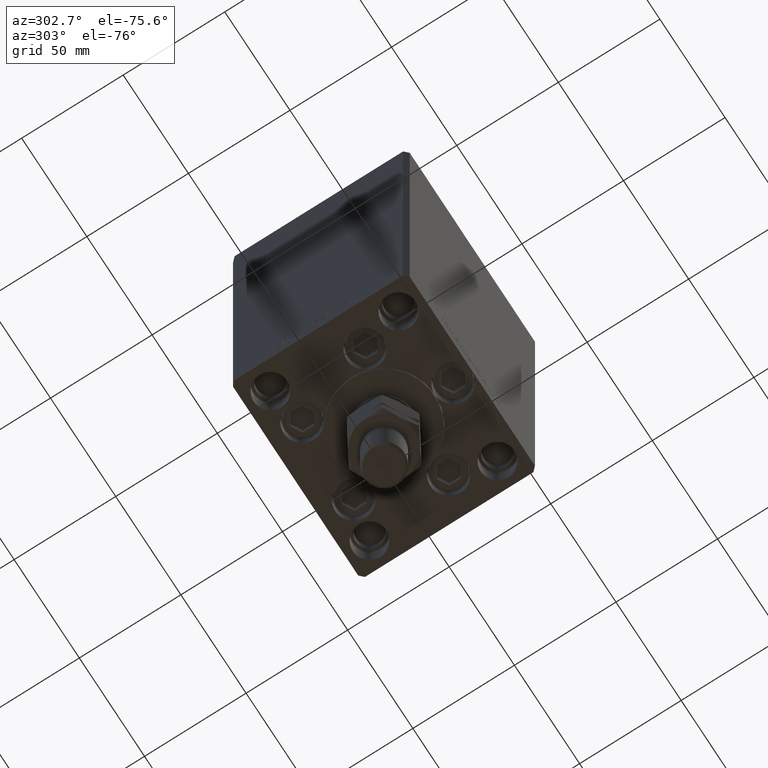
[diagram: clean part render]
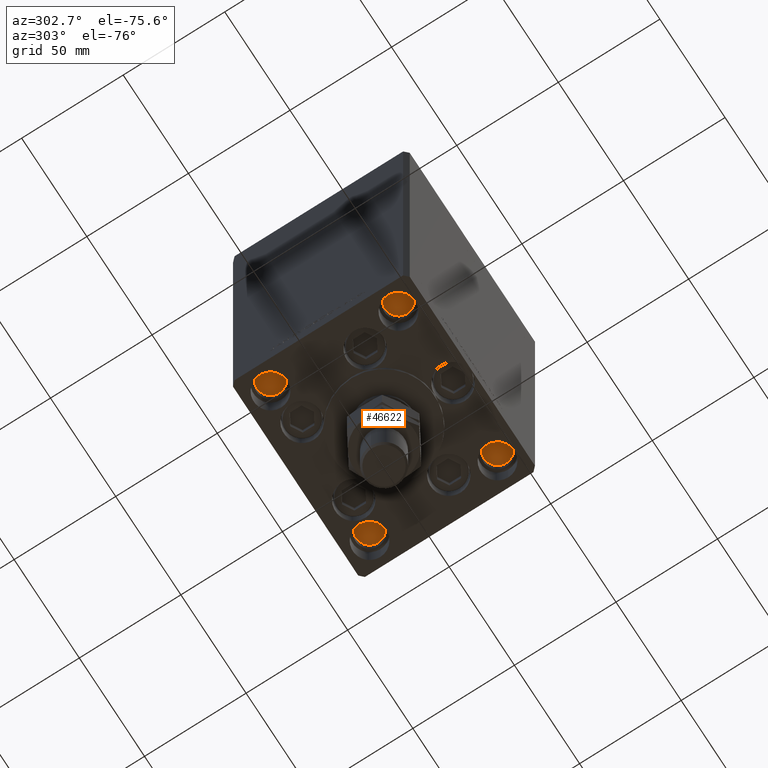
[diagram: same view with one face highlighted and labeled with its STEP entity id]
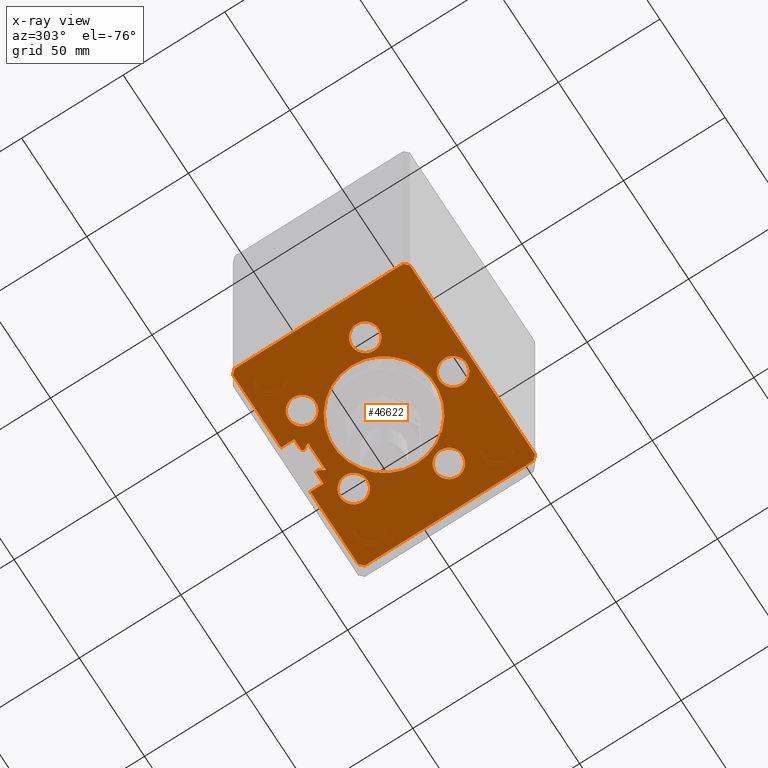
[diagram: x-ray of the same camera — body ghosted, the highlighted face saturated]
A machine part, auxiliary view. The second image highlights one B-rep face of the part: STEP entity #46622.
The next image is the same camera in x-ray: the body ghosted, the highlighted face saturated — about 2% of this face is hidden behind the body in this view.
In plain terms, the highlighted planar face has unit normal (0, 0, -1).
Its self-contained STEP definition (entity closure, byte-faithful):
#13 = AXIS2_PLACEMENT_3D ( 'NONE', #24228, #845, #8787 ) ;
#35 = ORIENTED_EDGE ( 'NONE', *, *, #9157, .F. ) ;
#242 = VERTEX_POINT ( 'NONE', #9892 ) ;
#845 = DIRECTION ( 'NONE',  ( 0.000000000000000000, 0.000000000000000000, -1.000000000000000000 ) ) ;
#970 = DIRECTION ( 'NONE',  ( -1.000000000000000000, 0.000000000000000000, 0.000000000000000000 ) ) ;
#1000 = ORIENTED_EDGE ( 'NONE', *, *, #7543, .F. ) ;
#1207 = VECTOR ( 'NONE', #20217, 1000.000000000000000 ) ;
#1394 = LINE ( 'NONE', #20665, #5279 ) ;
#1454 = LINE ( 'NONE', #45339, #24748 ) ;
#1631 = ORIENTED_EDGE ( 'NONE', *, *, #9635, .F. ) ;
#1771 = CARTESIAN_POINT ( 'NONE',  ( -25.30550741379015278, -11.33333333333334103, 0.000000000000000000 ) ) ;
#1869 = EDGE_CURVE ( 'NONE', #33202, #34085, #21086, .T. ) ;
#1889 = EDGE_CURVE ( 'NONE', #34085, #16377, #2500, .T. ) ;
#2276 = CARTESIAN_POINT ( 'NONE',  ( 48.00000000000000711, 43.50000000000000000, 0.000000000000000000 ) ) ;
#2279 = LINE ( 'NONE', #45923, #9769 ) ;
#2408 = CIRCLE ( 'NONE', #31955, 6.749999999999999112 ) ;
#2462 = ORIENTED_EDGE ( 'NONE', *, *, #20446, .T. ) ;
#2500 = LINE ( 'NONE', #15095, #30213 ) ;
#2763 = DIRECTION ( 'NONE',  ( 1.000000000000000000, 0.000000000000000000, 0.000000000000000000 ) ) ;
#3336 = EDGE_CURVE ( 'NONE', #23847, #28022, #45731, .T. ) ;
#3490 = AXIS2_PLACEMENT_3D ( 'NONE', #24583, #6067, #28423 ) ;
#3771 = FACE_BOUND ( 'NONE', #24897, .T. ) ;
#3869 = DIRECTION ( 'NONE',  ( 1.000000000000000000, 0.000000000000000000, 0.000000000000000000 ) ) ;
#3994 = DIRECTION ( 'NONE',  ( -0.000000000000000000, -0.000000000000000000, -1.000000000000000000 ) ) ;
#4018 = FACE_BOUND ( 'NONE', #10931, .T. ) ;
#4036 = CARTESIAN_POINT ( 'NONE',  ( -49.99999999999998579, -41.49999999999999289, 0.000000000000000000 ) ) ;
#4648 = AXIS2_PLACEMENT_3D ( 'NONE', #30888, #42942, #22689 ) ;
#4651 = CARTESIAN_POINT ( 'NONE',  ( -11.24999999999999822, 43.50000000000000000, 0.000000000000000000 ) ) ;
#4877 = LINE ( 'NONE', #31580, #27668 ) ;
#5209 = EDGE_CURVE ( 'NONE', #16377, #26003, #16619, .T. ) ;
#5279 = VECTOR ( 'NONE', #43250, 1000.000000000000000 ) ;
#5810 = CARTESIAN_POINT ( 'NONE',  ( -26.57068048781373548, 27.62499999999999645, 0.000000000000000000 ) ) ;
#6067 = DIRECTION ( 'NONE',  ( 0.000000000000000000, 0.000000000000000000, -1.000000000000000000 ) ) ;
#6408 = CARTESIAN_POINT ( 'NONE',  ( -11.24999999999999822, 43.50000000000000000, 0.000000000000000000 ) ) ;
#6651 = EDGE_CURVE ( 'NONE', #29056, #23782, #2279, .T. ) ;
#6916 = EDGE_LOOP ( 'NONE', ( #24553, #20221 ) ) ;
#7543 = EDGE_CURVE ( 'NONE', #242, #33903, #2408, .T. ) ;
#7695 = DIRECTION ( 'NONE',  ( -1.000000000000000000, 0.000000000000000000, 0.000000000000000000 ) ) ;
#7836 = DIRECTION ( 'NONE',  ( 1.000000000000000000, 0.000000000000000000, 0.000000000000000000 ) ) ;
#8062 = DIRECTION ( 'NONE',  ( -1.000000000000000000, 0.000000000000000000, 0.000000000000000000 ) ) ;
#8081 = CARTESIAN_POINT ( 'NONE',  ( -32.05550741379015278, -11.33333333333334103, 0.000000000000000000 ) ) ;
#8346 = CARTESIAN_POINT ( 'NONE',  ( 11.24999999999999822, 43.50000000000000000, 0.000000000000000000 ) ) ;
#8422 = VERTEX_POINT ( 'NONE', #33880 ) ;
#8563 = CARTESIAN_POINT ( 'NONE',  ( 50.00000000000001421, 41.49999999999999289, 0.000000000000000000 ) ) ;
#8787 = DIRECTION ( 'NONE',  ( -1.000000000000000000, 0.000000000000000000, 0.000000000000000000 ) ) ;
#9148 = VERTEX_POINT ( 'NONE', #27175 ) ;
#9154 = CARTESIAN_POINT ( 'NONE',  ( 6.876153656360465050, 32.99999999999986500, 0.000000000000000000 ) ) ;
#9157 = EDGE_CURVE ( 'NONE', #43502, #40711, #40206, .T. ) ;
#9403 = CIRCLE ( 'NONE', #17617, 6.749999999999999112 ) ;
#9538 = EDGE_CURVE ( 'NONE', #13394, #15029, #36130, .T. ) ;
#9635 = EDGE_CURVE ( 'NONE', #42655, #22672, #34490, .T. ) ;
#9730 = DIRECTION ( 'NONE',  ( -1.000000000000000000, 0.000000000000000000, 0.000000000000000000 ) ) ;
#9769 = VECTOR ( 'NONE', #45659, 1000.000000000000114 ) ;
#9892 = CARTESIAN_POINT ( 'NONE',  ( 25.30550741379015278, -11.33333333333333215, 0.000000000000000000 ) ) ;
#10076 = CARTESIAN_POINT ( 'NONE',  ( -6.183333333333997928, 36.99999999999999289, 0.000000000000000000 ) ) ;
#10931 = EDGE_LOOP ( 'NONE', ( #28210, #20264 ) ) ;
#10972 = CARTESIAN_POINT ( 'NONE',  ( 6.183333333333997928, 36.06666666666598786, 0.000000000000000000 ) ) ;
#10977 = PLANE ( 'NONE',  #26780 ) ;
#11134 = DIRECTION ( 'NONE',  ( 1.000000000000000000, 0.000000000000000000, 0.000000000000000000 ) ) ;
#11204 = CIRCLE ( 'NONE', #4648, 6.749999999999999112 ) ;
#11222 = DIRECTION ( 'NONE',  ( 0.000000000000000000, 0.000000000000000000, -1.000000000000000000 ) ) ;
#11257 = EDGE_CURVE ( 'NONE', #42176, #14490, #49773, .T. ) ;
#11395 = ORIENTED_EDGE ( 'NONE', *, *, #16180, .T. ) ;
#11442 = CARTESIAN_POINT ( 'NONE',  ( 6.750000000000003553, -34.00000000000000000, 0.000000000000000000 ) ) ;
#11578 = VERTEX_POINT ( 'NONE', #25100 ) ;
#11662 = DIRECTION ( 'NONE',  ( -0.000000000000000000, 0.000000000000000000, 1.000000000000000000 ) ) ;
#11673 = CIRCLE ( 'NONE', #3490, 6.749999999999999112 ) ;
#11970 = ORIENTED_EDGE ( 'NONE', *, *, #33373, .T. ) ;
#12581 = CARTESIAN_POINT ( 'NONE',  ( 47.99999999999998579, -43.50000000000000000, 0.000000000000000000 ) ) ;
#12584 = EDGE_CURVE ( 'NONE', #41155, #50041, #35350, .T. ) ;
#12673 = ORIENTED_EDGE ( 'NONE', *, *, #35264, .F. ) ;
#13170 = DIRECTION ( 'NONE',  ( 0.000000000000000000, 0.000000000000000000, -1.000000000000000000 ) ) ;
#13211 = VECTOR ( 'NONE', #37251, 1000.000000000000000 ) ;
#13214 = CIRCLE ( 'NONE', #35347, 0.9333333333340008142 ) ;
#13276 = DIRECTION ( 'NONE',  ( 0.000000000000000000, 0.000000000000000000, -1.000000000000000000 ) ) ;
#13394 = VERTEX_POINT ( 'NONE', #11442 ) ;
#13678 = VERTEX_POINT ( 'NONE', #34770 ) ;
#14130 = CARTESIAN_POINT ( 'NONE',  ( -48.00000000000000711, 43.50000000000000000, 0.000000000000000000 ) ) ;
#14348 = CARTESIAN_POINT ( 'NONE',  ( 32.05550741379015278, -11.33333333333333215, 0.000000000000000000 ) ) ;
#14490 = VERTEX_POINT ( 'NONE', #8563 ) ;
#14611 = CARTESIAN_POINT ( 'NONE',  ( -38.80550741379015278, -11.33333333333334103, 0.000000000000000000 ) ) ;
#14637 = CARTESIAN_POINT ( 'NONE',  ( -5.375042956467945388, 35.59999999999898534, 0.000000000000000000 ) ) ;
#14816 = VERTEX_POINT ( 'NONE', #4651 ) ;
#15029 = VERTEX_POINT ( 'NONE', #31553 ) ;
#15095 = CARTESIAN_POINT ( 'NONE',  ( 6.183333333333997928, 36.99999999999999289, 0.000000000000000000 ) ) ;
#15504 = EDGE_CURVE ( 'NONE', #9148, #43761, #17986, .T. ) ;
#15613 = CARTESIAN_POINT ( 'NONE',  ( 6.183333333333997928, 36.99999999999999289, 0.000000000000000000 ) ) ;
#15761 = EDGE_LOOP ( 'NONE', ( #35, #36266 ) ) ;
#15833 = DIRECTION ( 'NONE',  ( -1.000000000000000000, 0.000000000000000000, -0.000000000000000000 ) ) ;
#15964 = ORIENTED_EDGE ( 'NONE', *, *, #28019, .F. ) ;
#16180 = EDGE_CURVE ( 'NONE', #36125, #13678, #1454, .T. ) ;
#16377 = VERTEX_POINT ( 'NONE', #34803 ) ;
#16545 = EDGE_CURVE ( 'NONE', #50041, #41155, #43603, .T. ) ;
#16619 = LINE ( 'NONE', #24852, #37577 ) ;
#16873 = LINE ( 'NONE', #20985, #1207 ) ;
#16875 = DIRECTION ( 'NONE',  ( 0.000000000000000000, 1.000000000000000000, 0.000000000000000000 ) ) ;
#17032 = CARTESIAN_POINT ( 'NONE',  ( 4.163799117101000559E-15, -34.00000000000000000, 0.000000000000000000 ) ) ;
#17257 = AXIS2_PLACEMENT_3D ( 'NONE', #17032, #13170, #44761 ) ;
#17617 = AXIS2_PLACEMENT_3D ( 'NONE', #42173, #50127, #46281 ) ;
#17986 = LINE ( 'NONE', #14130, #13211 ) ;
#18810 = LINE ( 'NONE', #10076, #37910 ) ;
#18849 = CARTESIAN_POINT ( 'NONE',  ( -6.183333333333997928, 36.06666666666598786, 0.000000000000000000 ) ) ;
#19027 = LINE ( 'NONE', #38779, #22704 ) ;
#19345 = EDGE_CURVE ( 'NONE', #33903, #242, #11204, .T. ) ;
#19439 = FACE_BOUND ( 'NONE', #6916, .T. ) ;
#19487 = EDGE_CURVE ( 'NONE', #14816, #9148, #19027, .T. ) ;
#19540 = CARTESIAN_POINT ( 'NONE',  ( 0.000000000000000000, 0.000000000000000000, 0.000000000000000000 ) ) ;
#19654 = DIRECTION ( 'NONE',  ( 0.000000000000000000, 0.000000000000000000, -1.000000000000000000 ) ) ;
#19706 = DIRECTION ( 'NONE',  ( 0.7071067811865474617, -0.7071067811865474617, 0.000000000000000000 ) ) ;
#19871 = LINE ( 'NONE', #23469, #27997 ) ;
#20054 = DIRECTION ( 'NONE',  ( -0.000000000000000000, 0.000000000000000000, 1.000000000000000000 ) ) ;
#20217 = DIRECTION ( 'NONE',  ( 1.000000000000000000, -0.000000000000000000, -0.000000000000000000 ) ) ;
#20221 = ORIENTED_EDGE ( 'NONE', *, *, #23631, .T. ) ;
#20264 = ORIENTED_EDGE ( 'NONE', *, *, #12584, .F. ) ;
#20306 = AXIS2_PLACEMENT_3D ( 'NONE', #46839, #11662, #27345 ) ;
#20446 = EDGE_CURVE ( 'NONE', #14816, #25206, #4877, .T. ) ;
#20665 = CARTESIAN_POINT ( 'NONE',  ( -50.00000000000001421, 41.49999999999999289, 0.000000000000000000 ) ) ;
#20985 = CARTESIAN_POINT ( 'NONE',  ( 6.876153656360465050, 32.99999999999986500, 0.000000000000000000 ) ) ;
#21086 = CIRCLE ( 'NONE', #45772, 0.9333333333340008142 ) ;
#21210 = ORIENTED_EDGE ( 'NONE', *, *, #32422, .T. ) ;
#21581 = CARTESIAN_POINT ( 'NONE',  ( 38.80550741379015278, -11.33333333333333215, 0.000000000000000000 ) ) ;
#21943 = ORIENTED_EDGE ( 'NONE', *, *, #11257, .T. ) ;
#21944 = ORIENTED_EDGE ( 'NONE', *, *, #15504, .F. ) ;
#22187 = EDGE_CURVE ( 'NONE', #38350, #8422, #27919, .T. ) ;
#22212 = CIRCLE ( 'NONE', #41886, 0.9333333333340008142 ) ;
#22317 = DIRECTION ( 'NONE',  ( 0.7071067811865487940, -0.7071067811865463515, 0.000000000000000000 ) ) ;
#22556 = FACE_BOUND ( 'NONE', #15761, .T. ) ;
#22672 = VERTEX_POINT ( 'NONE', #33872 ) ;
#22689 = DIRECTION ( 'NONE',  ( -1.000000000000000000, 0.000000000000000000, 0.000000000000000000 ) ) ;
#22704 = VECTOR ( 'NONE', #7695, 1000.000000000000000 ) ;
#22851 = CIRCLE ( 'NONE', #24499, 25.00000000000000000 ) ;
#23167 = ORIENTED_EDGE ( 'NONE', *, *, #41464, .T. ) ;
#23217 = DIRECTION ( 'NONE',  ( 0.000000000000000000, 0.000000000000000000, -1.000000000000000000 ) ) ;
#23469 = CARTESIAN_POINT ( 'NONE',  ( 50.00000000000001421, 41.49999999999999289, 0.000000000000000000 ) ) ;
#23631 = EDGE_CURVE ( 'NONE', #28022, #23847, #22851, .T. ) ;
#23782 = VERTEX_POINT ( 'NONE', #12581 ) ;
#23847 = VERTEX_POINT ( 'NONE', #30487 ) ;
#24228 = CARTESIAN_POINT ( 'NONE',  ( -19.82068048781373903, 27.62499999999999645, 0.000000000000000000 ) ) ;
#24499 = AXIS2_PLACEMENT_3D ( 'NONE', #19540, #20054, #3869 ) ;
#24553 = ORIENTED_EDGE ( 'NONE', *, *, #3336, .T. ) ;
#24583 = CARTESIAN_POINT ( 'NONE',  ( 19.82068048781373193, 27.62500000000000000, 0.000000000000000000 ) ) ;
#24748 = VECTOR ( 'NONE', #37135, 1000.000000000000114 ) ;
#24759 = ORIENTED_EDGE ( 'NONE', *, *, #44222, .F. ) ;
#24852 = CARTESIAN_POINT ( 'NONE',  ( 11.24999999999999822, 36.99999999999999289, 0.000000000000000000 ) ) ;
#24897 = EDGE_LOOP ( 'NONE', ( #1631, #50227 ) ) ;
#24974 = ORIENTED_EDGE ( 'NONE', *, *, #9538, .F. ) ;
#25100 = CARTESIAN_POINT ( 'NONE',  ( -6.183333333333997928, 36.99999999999999289, 0.000000000000000000 ) ) ;
#25206 = VERTEX_POINT ( 'NONE', #33938 ) ;
#26003 = VERTEX_POINT ( 'NONE', #8346 ) ;
#26007 = CARTESIAN_POINT ( 'NONE',  ( 49.99999999999998579, -41.49999999999999289, 0.000000000000000000 ) ) ;
#26663 = CARTESIAN_POINT ( 'NONE',  ( 0.000000000000000000, 0.000000000000000000, 0.000000000000000000 ) ) ;
#26780 = AXIS2_PLACEMENT_3D ( 'NONE', #26663, #11222, #15833 ) ;
#27175 = CARTESIAN_POINT ( 'NONE',  ( -48.00000000000000711, 43.50000000000000000, 0.000000000000000000 ) ) ;
#27303 = DIRECTION ( 'NONE',  ( -1.000000000000000000, 0.000000000000000000, 0.000000000000000000 ) ) ;
#27345 = DIRECTION ( 'NONE',  ( 1.000000000000000000, 0.000000000000000000, 0.000000000000000000 ) ) ;
#27410 = CARTESIAN_POINT ( 'NONE',  ( -5.249999999999996447, 36.06666666666598786, 0.000000000000000000 ) ) ;
#27668 = VECTOR ( 'NONE', #27989, 1000.000000000000000 ) ;
#27815 = DIRECTION ( 'NONE',  ( -3.344045254895050973E-16, -1.000000000000000000, 0.000000000000000000 ) ) ;
#27848 = DIRECTION ( 'NONE',  ( 0.000000000000000000, 0.000000000000000000, -1.000000000000000000 ) ) ;
#27919 = LINE ( 'NONE', #4036, #40015 ) ;
#27989 = DIRECTION ( 'NONE',  ( -0.000000000000000000, -1.000000000000000000, -0.000000000000000000 ) ) ;
#27997 = VECTOR ( 'NONE', #27815, 1000.000000000000000 ) ;
#28019 = EDGE_CURVE ( 'NONE', #15029, #13394, #45144, .T. ) ;
#28022 = VERTEX_POINT ( 'NONE', #33449 ) ;
#28047 = CARTESIAN_POINT ( 'NONE',  ( 48.00000000000000711, 43.50000000000000000, 0.000000000000000000 ) ) ;
#28171 = DIRECTION ( 'NONE',  ( -0.4999999999999996114, 0.8660254037844388186, 0.000000000000000000 ) ) ;
#28210 = ORIENTED_EDGE ( 'NONE', *, *, #16545, .F. ) ;
#28423 = DIRECTION ( 'NONE',  ( -1.000000000000000000, 0.000000000000000000, 0.000000000000000000 ) ) ;
#29056 = VERTEX_POINT ( 'NONE', #26007 ) ;
#30021 = DIRECTION ( 'NONE',  ( 0.000000000000000000, 0.000000000000000000, -1.000000000000000000 ) ) ;
#30213 = VECTOR ( 'NONE', #38698, 1000.000000000000000 ) ;
#30487 = CARTESIAN_POINT ( 'NONE',  ( -25.00000000000000000, 0.000000000000000000, 0.000000000000000000 ) ) ;
#30609 = LINE ( 'NONE', #46265, #45427 ) ;
#30671 = DIRECTION ( 'NONE',  ( -0.000000000000000000, -0.000000000000000000, -1.000000000000000000 ) ) ;
#30763 = FACE_BOUND ( 'NONE', #46044, .T. ) ;
#30888 = CARTESIAN_POINT ( 'NONE',  ( 32.05550741379015278, -11.33333333333333215, 0.000000000000000000 ) ) ;
#31142 = AXIS2_PLACEMENT_3D ( 'NONE', #43848, #13276, #970 ) ;
#31167 = ORIENTED_EDGE ( 'NONE', *, *, #36961, .T. ) ;
#31192 = CARTESIAN_POINT ( 'NONE',  ( -32.05550741379015278, -11.33333333333334103, 0.000000000000000000 ) ) ;
#31432 = ORIENTED_EDGE ( 'NONE', *, *, #40869, .F. ) ;
#31553 = CARTESIAN_POINT ( 'NONE',  ( -6.749999999999994671, -34.00000000000000000, 0.000000000000000000 ) ) ;
#31580 = CARTESIAN_POINT ( 'NONE',  ( -11.24999999999999822, 36.99999999999999289, 0.000000000000000000 ) ) ;
#31763 = ORIENTED_EDGE ( 'NONE', *, *, #40547, .T. ) ;
#31955 = AXIS2_PLACEMENT_3D ( 'NONE', #14348, #30021, #9730 ) ;
#32065 = VECTOR ( 'NONE', #22317, 1000.000000000000000 ) ;
#32279 = LINE ( 'NONE', #9154, #45470 ) ;
#32394 = ORIENTED_EDGE ( 'NONE', *, *, #1869, .T. ) ;
#32422 = EDGE_CURVE ( 'NONE', #11578, #41400, #22212, .T. ) ;
#33202 = VERTEX_POINT ( 'NONE', #40710 ) ;
#33320 = EDGE_CURVE ( 'NONE', #14490, #29056, #19871, .T. ) ;
#33373 = EDGE_CURVE ( 'NONE', #41400, #36125, #13214, .T. ) ;
#33449 = CARTESIAN_POINT ( 'NONE',  ( 25.00000000000000000, 3.061616997868383043E-15, 0.000000000000000000 ) ) ;
#33872 = CARTESIAN_POINT ( 'NONE',  ( -13.07068048781373726, 27.62499999999999645, 0.000000000000000000 ) ) ;
#33880 = CARTESIAN_POINT ( 'NONE',  ( -47.99999999999998579, -43.50000000000000000, 0.000000000000000000 ) ) ;
#33894 = DIRECTION ( 'NONE',  ( -1.000000000000000000, 0.000000000000000000, 0.000000000000000000 ) ) ;
#33903 = VERTEX_POINT ( 'NONE', #21581 ) ;
#33938 = CARTESIAN_POINT ( 'NONE',  ( -11.24999999999999822, 36.99999999999999289, 0.000000000000000000 ) ) ;
#34085 = VERTEX_POINT ( 'NONE', #15613 ) ;
#34490 = CIRCLE ( 'NONE', #13, 6.749999999999999112 ) ;
#34599 = DIRECTION ( 'NONE',  ( -0.000000000000000000, -0.000000000000000000, -1.000000000000000000 ) ) ;
#34770 = CARTESIAN_POINT ( 'NONE',  ( -6.876153656360465050, 32.99999999999986500, 0.000000000000000000 ) ) ;
#34803 = CARTESIAN_POINT ( 'NONE',  ( 11.24999999999999822, 36.99999999999999289, 0.000000000000000000 ) ) ;
#35264 = EDGE_CURVE ( 'NONE', #42176, #26003, #41583, .T. ) ;
#35279 = AXIS2_PLACEMENT_3D ( 'NONE', #41954, #23217, #27303 ) ;
#35347 = AXIS2_PLACEMENT_3D ( 'NONE', #42782, #3994, #7836 ) ;
#35350 = CIRCLE ( 'NONE', #47673, 6.749999999999999112 ) ;
#35880 = CARTESIAN_POINT ( 'NONE',  ( -50.00000000000001421, 41.49999999999999289, 0.000000000000000000 ) ) ;
#36125 = VERTEX_POINT ( 'NONE', #14637 ) ;
#36130 = CIRCLE ( 'NONE', #35279, 6.749999999999999112 ) ;
#36266 = ORIENTED_EDGE ( 'NONE', *, *, #50473, .F. ) ;
#36515 = ORIENTED_EDGE ( 'NONE', *, *, #19345, .F. ) ;
#36870 = CARTESIAN_POINT ( 'NONE',  ( 26.57068048781373193, 27.62500000000000000, 0.000000000000000000 ) ) ;
#36961 = EDGE_CURVE ( 'NONE', #25206, #11578, #18810, .T. ) ;
#37135 = DIRECTION ( 'NONE',  ( -0.4999999999999996114, -0.8660254037844388186, -0.000000000000000000 ) ) ;
#37251 = DIRECTION ( 'NONE',  ( -0.7071067811865487940, -0.7071067811865463515, 0.000000000000000000 ) ) ;
#37312 = EDGE_LOOP ( 'NONE', ( #15964, #24974 ) ) ;
#37577 = VECTOR ( 'NONE', #16875, 1000.000000000000000 ) ;
#37910 = VECTOR ( 'NONE', #49374, 1000.000000000000000 ) ;
#38186 = FACE_OUTER_BOUND ( 'NONE', #40487, .T. ) ;
#38350 = VERTEX_POINT ( 'NONE', #47474 ) ;
#38372 = ORIENTED_EDGE ( 'NONE', *, *, #1889, .T. ) ;
#38565 = VERTEX_POINT ( 'NONE', #46177 ) ;
#38698 = DIRECTION ( 'NONE',  ( 1.000000000000000000, 0.000000000000000000, 0.000000000000000000 ) ) ;
#38779 = CARTESIAN_POINT ( 'NONE',  ( -11.24999999999999822, 43.50000000000000000, 0.000000000000000000 ) ) ;
#38914 = DIRECTION ( 'NONE',  ( -1.000000000000000000, 0.000000000000000000, 0.000000000000000000 ) ) ;
#40015 = VECTOR ( 'NONE', #19706, 1000.000000000000114 ) ;
#40206 = CIRCLE ( 'NONE', #31142, 6.749999999999999112 ) ;
#40487 = EDGE_LOOP ( 'NONE', ( #2462, #31167, #21210, #11970, #11395, #23167, #31763, #32394, #38372, #46696, #12673, #21943, #47783, #43227, #24759, #49459, #31432, #21944, #44021 ) ) ;
#40547 = EDGE_CURVE ( 'NONE', #38565, #33202, #32279, .T. ) ;
#40710 = CARTESIAN_POINT ( 'NONE',  ( 5.375042956467945388, 35.59999999999898534, 0.000000000000000000 ) ) ;
#40711 = VERTEX_POINT ( 'NONE', #36870 ) ;
#40869 = EDGE_CURVE ( 'NONE', #43761, #38350, #1394, .T. ) ;
#41064 = CARTESIAN_POINT ( 'NONE',  ( 13.07068048781373193, 27.62500000000000000, 0.000000000000000000 ) ) ;
#41155 = VERTEX_POINT ( 'NONE', #1771 ) ;
#41400 = VERTEX_POINT ( 'NONE', #27410 ) ;
#41464 = EDGE_CURVE ( 'NONE', #13678, #38565, #16873, .T. ) ;
#41583 = LINE ( 'NONE', #6408, #44462 ) ;
#41886 = AXIS2_PLACEMENT_3D ( 'NONE', #18849, #30671, #11134 ) ;
#41954 = CARTESIAN_POINT ( 'NONE',  ( 4.163799117101000559E-15, -34.00000000000000000, 0.000000000000000000 ) ) ;
#42173 = CARTESIAN_POINT ( 'NONE',  ( -19.82068048781373903, 27.62499999999999645, 0.000000000000000000 ) ) ;
#42176 = VERTEX_POINT ( 'NONE', #28047 ) ;
#42403 = DIRECTION ( 'NONE',  ( 1.000000000000000000, 0.000000000000000000, 0.000000000000000000 ) ) ;
#42655 = VERTEX_POINT ( 'NONE', #5810 ) ;
#42763 = AXIS2_PLACEMENT_3D ( 'NONE', #31192, #27848, #8062 ) ;
#42782 = CARTESIAN_POINT ( 'NONE',  ( -6.183333333333997928, 36.06666666666598786, 0.000000000000000000 ) ) ;
#42942 = DIRECTION ( 'NONE',  ( 0.000000000000000000, 0.000000000000000000, -1.000000000000000000 ) ) ;
#43227 = ORIENTED_EDGE ( 'NONE', *, *, #6651, .T. ) ;
#43250 = DIRECTION ( 'NONE',  ( 3.344045254895050973E-16, -1.000000000000000000, 0.000000000000000000 ) ) ;
#43502 = VERTEX_POINT ( 'NONE', #41064 ) ;
#43603 = CIRCLE ( 'NONE', #42763, 6.749999999999999112 ) ;
#43761 = VERTEX_POINT ( 'NONE', #35880 ) ;
#43848 = CARTESIAN_POINT ( 'NONE',  ( 19.82068048781373193, 27.62500000000000000, 0.000000000000000000 ) ) ;
#44021 = ORIENTED_EDGE ( 'NONE', *, *, #19487, .F. ) ;
#44222 = EDGE_CURVE ( 'NONE', #8422, #23782, #30609, .T. ) ;
#44462 = VECTOR ( 'NONE', #33894, 1000.000000000000000 ) ;
#44761 = DIRECTION ( 'NONE',  ( -1.000000000000000000, 0.000000000000000000, 0.000000000000000000 ) ) ;
#45144 = CIRCLE ( 'NONE', #17257, 6.749999999999999112 ) ;
#45197 = EDGE_CURVE ( 'NONE', #22672, #42655, #9403, .T. ) ;
#45339 = CARTESIAN_POINT ( 'NONE',  ( -6.876153656360465050, 32.99999999999986500, 0.000000000000000000 ) ) ;
#45427 = VECTOR ( 'NONE', #42403, 1000.000000000000000 ) ;
#45470 = VECTOR ( 'NONE', #28171, 1000.000000000000114 ) ;
#45659 = DIRECTION ( 'NONE',  ( -0.7071067811865474617, -0.7071067811865474617, 0.000000000000000000 ) ) ;
#45731 = CIRCLE ( 'NONE', #20306, 25.00000000000000000 ) ;
#45772 = AXIS2_PLACEMENT_3D ( 'NONE', #10972, #34599, #2763 ) ;
#45923 = CARTESIAN_POINT ( 'NONE',  ( 49.99999999999998579, -41.49999999999999289, 0.000000000000000000 ) ) ;
#46044 = EDGE_LOOP ( 'NONE', ( #1000, #36515 ) ) ;
#46177 = CARTESIAN_POINT ( 'NONE',  ( 6.876153656360465050, 32.99999999999986500, 0.000000000000000000 ) ) ;
#46265 = CARTESIAN_POINT ( 'NONE',  ( -47.99999999999998579, -43.50000000000000000, 0.000000000000000000 ) ) ;
#46281 = DIRECTION ( 'NONE',  ( -1.000000000000000000, 0.000000000000000000, 0.000000000000000000 ) ) ;
#46411 = FACE_BOUND ( 'NONE', #37312, .T. ) ;
#46622 = ADVANCED_FACE ( 'NONE', ( #3771, #22556, #30763, #46411, #4018, #38186, #19439 ), #10977, .T. ) ;
#46696 = ORIENTED_EDGE ( 'NONE', *, *, #5209, .T. ) ;
#46839 = CARTESIAN_POINT ( 'NONE',  ( 0.000000000000000000, 0.000000000000000000, 0.000000000000000000 ) ) ;
#47474 = CARTESIAN_POINT ( 'NONE',  ( -49.99999999999998579, -41.49999999999999289, 0.000000000000000000 ) ) ;
#47673 = AXIS2_PLACEMENT_3D ( 'NONE', #8081, #19654, #38914 ) ;
#47783 = ORIENTED_EDGE ( 'NONE', *, *, #33320, .T. ) ;
#49374 = DIRECTION ( 'NONE',  ( 1.000000000000000000, -0.000000000000000000, -0.000000000000000000 ) ) ;
#49459 = ORIENTED_EDGE ( 'NONE', *, *, #22187, .F. ) ;
#49773 = LINE ( 'NONE', #2276, #32065 ) ;
#50041 = VERTEX_POINT ( 'NONE', #14611 ) ;
#50127 = DIRECTION ( 'NONE',  ( 0.000000000000000000, 0.000000000000000000, -1.000000000000000000 ) ) ;
#50227 = ORIENTED_EDGE ( 'NONE', *, *, #45197, .F. ) ;
#50473 = EDGE_CURVE ( 'NONE', #40711, #43502, #11673, .T. ) ;